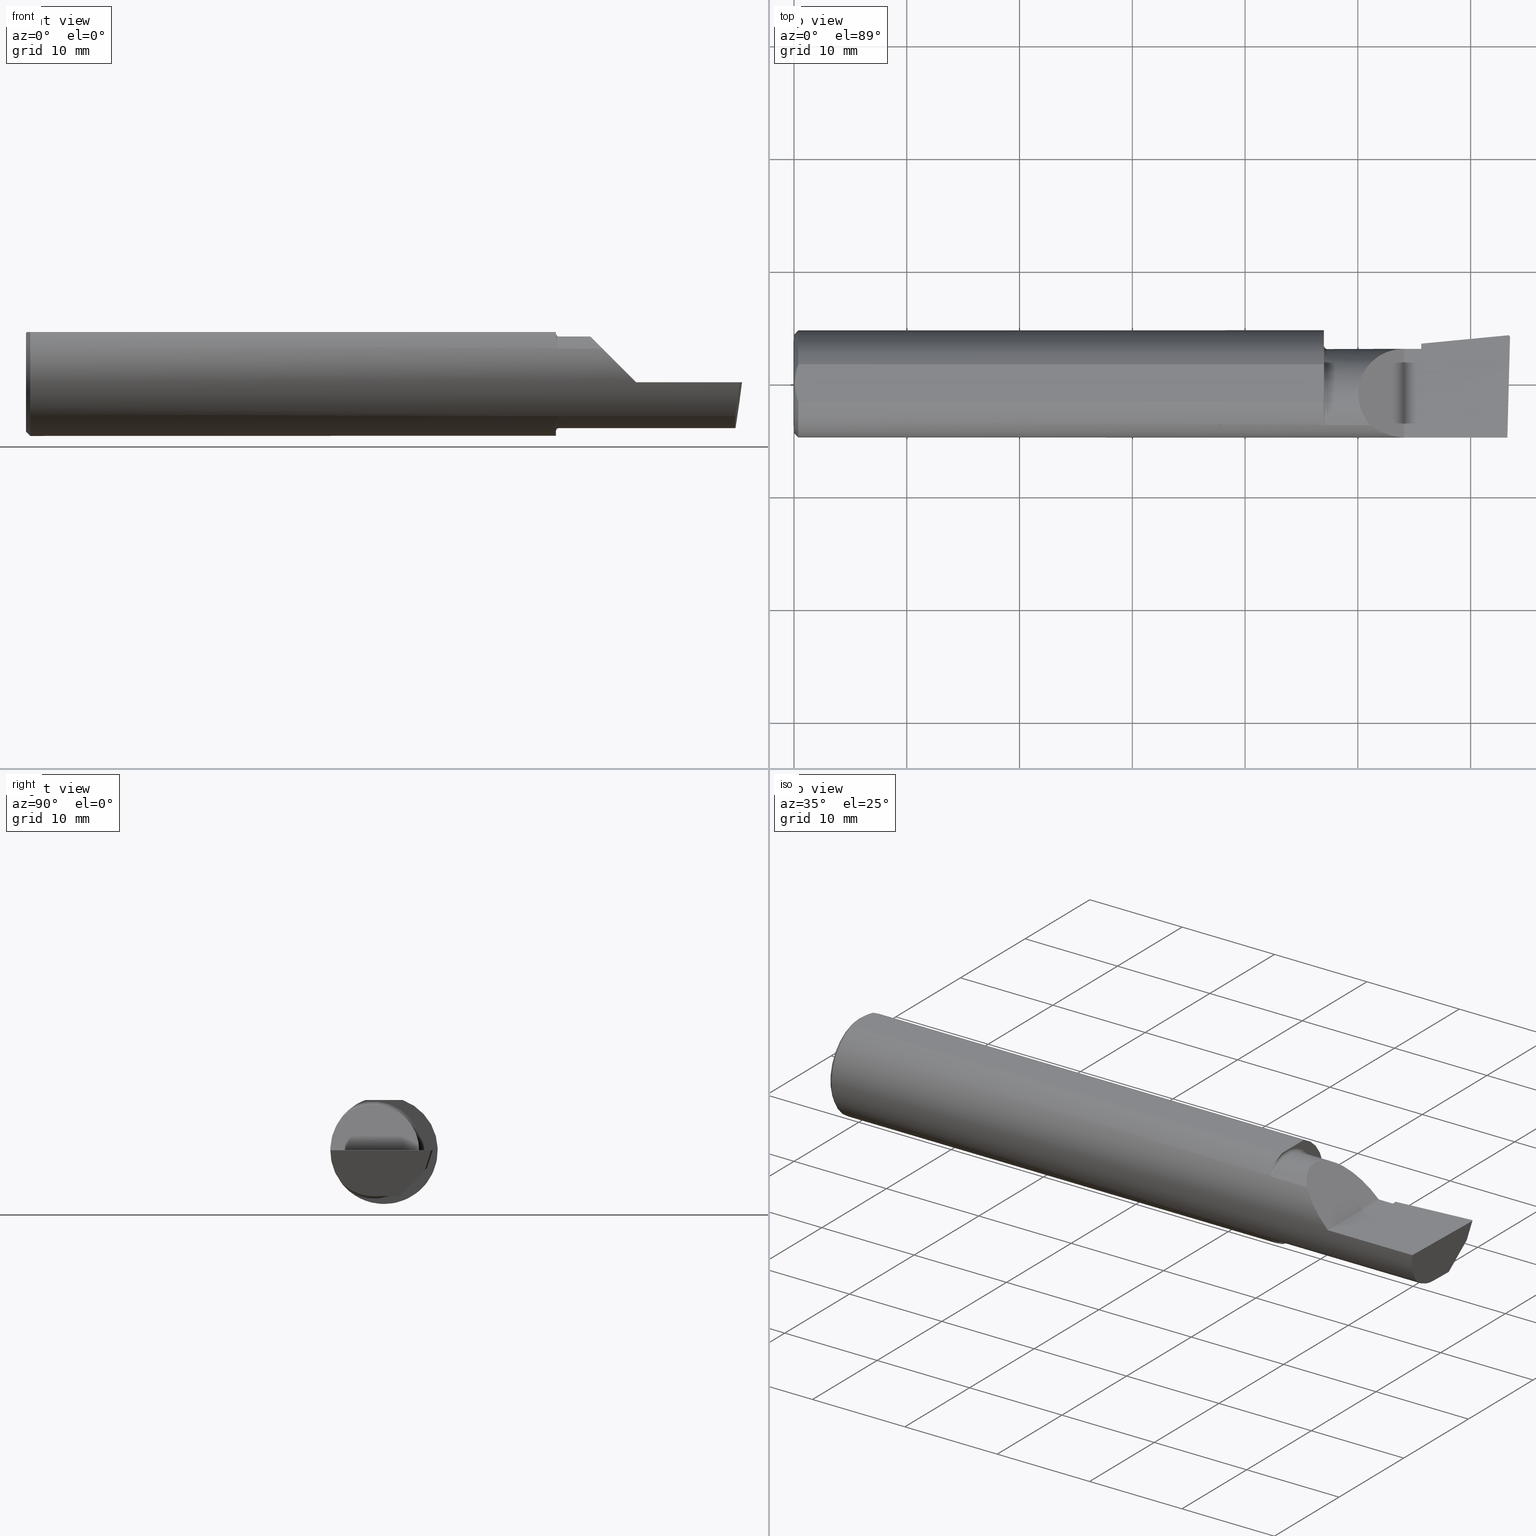
[diagram: canonical four-view strip — front | top / right | iso, engineering-drawing reading convention]
A machine part, canonical four-view strip (front | top / right | iso — engineering-drawing reading convention). The complete STEP part file that produces these views, byte-faithful:
ISO-10303-21;
HEADER;
FILE_DESCRIPTION (( 'STEP AP203' ),
    '1' );
FILE_NAME ('213696-B360600R.STEP',
    '2024-04-16T17:32:55',
    ( '' ),
    ( '' ),
    'SwSTEP 2.0',
    'SolidWorks 2022',
    '' );
FILE_SCHEMA (( 'CONFIG_CONTROL_DESIGN' ));
ENDSEC;

DATA;
#1 = PERSON_AND_ORGANIZATION_ROLE ( 'creator' ) ;
#2 = CARTESIAN_POINT ( 'NONE',  ( 1.859343186359710298, -0.1454917112302225868, 0.1180346748345670188 ) ) ;
#3 = PRODUCT_RELATED_PRODUCT_CATEGORY ( 'detail', '', ( #646 ) ) ;
#4 = LINE ( 'NONE', #493, #21 ) ;
#5 = LINE ( 'NONE', #165, #162 ) ;
#6 = AXIS2_PLACEMENT_3D ( 'NONE', #647, #644, #267 ) ;
#7 = ORIENTED_EDGE ( 'NONE', *, *, #656, .T. ) ;
#8 = CARTESIAN_POINT ( 'NONE',  ( 2.499910038027526316, 0.1672144908750999859, 6.760805322059816658E-17 ) ) ;
#9 = ORIENTED_EDGE ( 'NONE', *, *, #398, .F. ) ;
#10 = FACE_OUTER_BOUND ( 'NONE', #112, .T. ) ;
#11 = AXIS2_PLACEMENT_3D ( 'NONE', #328, #58, #483 ) ;
#12 = ORIENTED_EDGE ( 'NONE', *, *, #650, .T. ) ;
#13 = DIMENSIONAL_EXPONENTS ( 1.000000000000000000, 0.000000000000000000, 0.000000000000000000, 0.000000000000000000, 0.000000000000000000, 0.000000000000000000, 0.000000000000000000 ) ;
#14 = DIRECTION ( 'NONE',  ( -0.02617694830791348487, -0.9996573249755561497, 0.000000000000000000 ) ) ;
#15 = AXIS2_PLACEMENT_3D ( 'NONE', #660, #507, #237 ) ;
#16 = EDGE_CURVE ( 'NONE', #278, #466, #179, .T. ) ;
#17 = DIRECTION ( 'NONE',  ( 1.000000000000000000, 0.000000000000000000, 0.000000000000000000 ) ) ;
#18 = CARTESIAN_POINT ( 'NONE',  ( 0.003000000000000218638, 2.334609556160449697E-17, 0.1753499999999999781 ) ) ;
#19 = CARTESIAN_POINT ( 'NONE',  ( 2.190000000000000391, 0.1408003950587674580, 3.286754617377316716E-16 ) ) ;
#20 = LINE ( 'NONE', #80, #391 ) ;
#21 = VECTOR ( 'NONE', #445, 39.37007874015748143 ) ;
#22 = EDGE_CURVE ( 'NONE', #652, #689, #384, .T. ) ;
#23 = DIRECTION ( 'NONE',  ( -0.1240019227989955369, -0.3022330132596681707, -0.9451342385281221725 ) ) ;
#24 = VERTEX_POINT ( 'NONE', #597 ) ;
#25 = AXIS2_PLACEMENT_3D ( 'NONE', #524, #418, #141 ) ;
#26 = CARTESIAN_POINT ( 'NONE',  ( 2.189999999999999947, 0.1226499999999998980, 3.267291166268304703E-16 ) ) ;
#27 = DIRECTION ( 'NONE',  ( 0.1053106618242457548, 0.6976485211320155866, 0.7086580314005133108 ) ) ;
#28 = EDGE_CURVE ( 'NONE', #554, #584, #606, .T. ) ;
#29 = CC_DESIGN_PERSON_AND_ORGANIZATION_ASSIGNMENT ( #257, #580, ( #646 ) ) ;
#30 = ORIENTED_EDGE ( 'NONE', *, *, #536, .F. ) ;
#31 = ADVANCED_FACE ( 'NONE', ( #116 ), #334, .T. ) ;
#32 = DIRECTION ( 'NONE',  ( 0.000000000000000000, -1.000000000000000000, 0.000000000000000000 ) ) ;
#33 = CARTESIAN_POINT ( 'NONE',  ( 2.485436870590302050, 0.1508047977990067678, -0.06001468779820764987 ) ) ;
#34 = APPROVAL_PERSON_ORGANIZATION ( #379, #126, #143 ) ;
#35 = ORIENTED_EDGE ( 'NONE', *, *, #663, .F. ) ;
#36 = APPROVAL_STATUS ( 'not_yet_approved' ) ;
#37 = DIRECTION ( 'NONE',  ( 0.000000000000000000, 1.000000000000000000, 0.000000000000000000 ) ) ;
#38 = ORIENTED_EDGE ( 'NONE', *, *, #113, .T. ) ;
#39 = CALENDAR_DATE ( 2024, 16, 4 ) ;
#40 = EDGE_CURVE ( 'NONE', #307, #637, #175, .T. ) ;
#41 = PLANE ( 'NONE',  #280 ) ;
#42 = PLANE ( 'NONE',  #210 ) ;
#43 = ORIENTED_EDGE ( 'NONE', *, *, #167, .F. ) ;
#44 = ORIENTED_EDGE ( 'NONE', *, *, #331, .F. ) ;
#45 = PERSON_AND_ORGANIZATION_ROLE ( 'design_supplier' ) ;
#46 = DIRECTION ( 'NONE',  ( -1.033731667140896077E-16, 0.000000000000000000, -1.000000000000000000 ) ) ;
#47 = CYLINDRICAL_SURFACE ( 'NONE', #6, 0.006500000000000003171 ) ;
#48 = APPLICATION_CONTEXT ( 'configuration controlled 3d designs of mechanical parts and assemblies' ) ;
#49 = ORIENTED_EDGE ( 'NONE', *, *, #600, .T. ) ;
#50 = EDGE_CURVE ( 'NONE', #470, #24, #655, .T. ) ;
#51 = CC_DESIGN_APPROVAL ( #425, ( #239 ) ) ;
#52 = EDGE_CURVE ( 'NONE', #470, #637, #666, .T. ) ;
#53 = ORIENTED_EDGE ( 'NONE', *, *, #650, .F. ) ;
#54 = PERSON_AND_ORGANIZATION ( #312, #268 ) ;
#55 = FACE_OUTER_BOUND ( 'NONE', #91, .T. ) ;
#56 = CALENDAR_DATE ( 2024, 16, 4 ) ;
#57 = CARTESIAN_POINT ( 'NONE',  ( 1.854402240695038451, -0.1382337250035444720, 0.1264828452200235376 ) ) ;
#58 = DIRECTION ( 'NONE',  ( -1.000000000000000000, 6.829619984160658046E-18, -0.000000000000000000 ) ) ;
#59 = ADVANCED_BREP_SHAPE_REPRESENTATION ( '213696-B360600R', ( #355, #146 ), #171 ) ;
#60 = DIRECTION ( 'NONE',  ( 0.000000000000000000, 0.000000000000000000, -1.000000000000000000 ) ) ;
#61 = ORIENTED_EDGE ( 'NONE', *, *, #254, .F. ) ;
#62 = LINE ( 'NONE', #282, #134 ) ;
#63 = AXIS2_PLACEMENT_3D ( 'NONE', #206, #199, #519 ) ;
#64 = ORIENTED_EDGE ( 'NONE', *, *, #495, .F. ) ;
#65 = CARTESIAN_POINT ( 'NONE',  ( 2.190000000000000391, 0.1039332780936033929, -0.07900565447499378890 ) ) ;
#66 = VERTEX_POINT ( 'NONE', #133 ) ;
#67 = DIRECTION ( 'NONE',  ( -6.829619984160658046E-18, -1.000000000000000000, 0.000000000000000000 ) ) ;
#68 = AXIS2_PLACEMENT_3D ( 'NONE', #161, #431, #640 ) ;
#69 = CARTESIAN_POINT ( 'NONE',  ( 1.850483388365424364, -0.1180160148311104190, -0.1458664675357415619 ) ) ;
#70 = CARTESIAN_POINT ( 'NONE',  ( 2.493512870449336116, 0.1699961668063743603, 6.829619984160658046E-17 ) ) ;
#71 = CARTESIAN_POINT ( 'NONE',  ( 1.856664569472227688, -0.1431262185210685489, -0.1208975608635237120 ) ) ;
#72 =( BOUNDED_CURVE ( )  B_SPLINE_CURVE ( 3, ( #86, #310, #422, #83 ),
 .UNSPECIFIED., .F., .F. ) 
 B_SPLINE_CURVE_WITH_KNOTS ( ( 4, 4 ),
 ( 3.511516179717891095, 3.604018710826489169 ),
 .UNSPECIFIED. ) 
 CURVE ( )  GEOMETRIC_REPRESENTATION_ITEM ( )  RATIONAL_B_SPLINE_CURVE ( ( 1.000000000000000000, 0.9992870672494007511, 0.9992870672494007511, 1.000000000000000000 ) ) 
 REPRESENTATION_ITEM ( '' )  );
#73 = CARTESIAN_POINT ( 'NONE',  ( 0.01125230581755086272, 0.05532998191409922023, 0.1753500000000000059 ) ) ;
#74 = FACE_OUTER_BOUND ( 'NONE', #413, .T. ) ;
#75 = LINE ( 'NONE', #468, #183 ) ;
#76 = CARTESIAN_POINT ( 'NONE',  ( 2.477223734188808368, -0.1454917112299465021, -0.1180346748349054287 ) ) ;
#77 = AXIS2_PLACEMENT_3D ( 'NONE', #411, #300, #399 ) ;
#78 = ORIENTED_EDGE ( 'NONE', *, *, #149, .T. ) ;
#79 = DIRECTION ( 'NONE',  ( 1.000000000000000000, 0.000000000000000000, 0.000000000000000000 ) ) ;
#80 = CARTESIAN_POINT ( 'NONE',  ( 2.024999999999999911, -0.1454917112299465021, -0.1180346748349054287 ) ) ;
#81 = ORIENTED_EDGE ( 'NONE', *, *, #286, .F. ) ;
#82 = CARTESIAN_POINT ( 'NONE',  ( 2.490625440078237940, -0.1873499999999999888, 6.926778495256704501E-17 ) ) ;
#83 = CARTESIAN_POINT ( 'NONE',  ( 2.492906680581914447, 0.1699669910246714710, 6.902945873236853560E-17 ) ) ;
#84 = VERTEX_POINT ( 'NONE', #342 ) ;
#85 = ORIENTED_EDGE ( 'NONE', *, *, #656, .F. ) ;
#86 = CARTESIAN_POINT ( 'NONE',  ( 2.493512870449336116, 0.1699961668063743603, 6.829619984160658046E-17 ) ) ;
#87 = ORIENTED_EDGE ( 'NONE', *, *, #696, .T. ) ;
#88 = EDGE_CURVE ( 'NONE', #638, #131, #515, .T. ) ;
#89 = DIRECTION ( 'NONE',  ( 1.000000000000000000, 0.000000000000000000, 0.000000000000000000 ) ) ;
#90 = CARTESIAN_POINT ( 'NONE',  ( 1.856216587669450524, -0.1423502170013167256, 0.1218111458006547326 ) ) ;
#91 = EDGE_LOOP ( 'NONE', ( #616, #251, #44 ) ) ;
#92 = VECTOR ( 'NONE', #634, 39.37007874015748854 ) ;
#93 = VERTEX_POINT ( 'NONE', #291 ) ;
#94 = DIRECTION ( 'NONE',  ( 1.000000000000000000, 0.000000000000000000, 0.000000000000000000 ) ) ;
#95 = CARTESIAN_POINT ( 'NONE',  ( 2.473833329693935212, -0.07789060880782647245, -0.1600499999999999978 ) ) ;
#96 = CARTESIAN_POINT ( 'NONE',  ( 2.129999999999999893, -0.2500000000000000555, 1.065442715258197396E-16 ) ) ;
#97 = EDGE_CURVE ( 'NONE', #584, #298, #615, .T. ) ;
#98 = EDGE_CURVE ( 'NONE', #174, #159, #20, .T. ) ;
#99 = ORIENTED_EDGE ( 'NONE', *, *, #297, .T. ) ;
#100 = ORIENTED_EDGE ( 'NONE', *, *, #224, .T. ) ;
#101 = DATE_AND_TIME ( #475, #340 ) ;
#102 = CARTESIAN_POINT ( 'NONE',  ( 0.000000000000000000, 0.000000000000000000, -0.1723499999999996424 ) ) ;
#103 = DIRECTION ( 'NONE',  ( -0.09165774897393336174, 0.9519021185660612172, -0.2923717047227308297 ) ) ;
#104 = VECTOR ( 'NONE', #114, 39.37007874015748854 ) ;
#105 = ORIENTED_EDGE ( 'NONE', *, *, #16, .T. ) ;
#106 = PERSON_AND_ORGANIZATION ( #312, #268 ) ;
#107 = APPROVAL ( #428, 'UNSPECIFIED' ) ;
#108 = DIRECTION ( 'NONE',  ( -0.7071067811865439090, 0.000000000000000000, -0.7071067811865512365 ) ) ;
#109 = VECTOR ( 'NONE', #687, 39.37007874015748143 ) ;
#110 = CARTESIAN_POINT ( 'NONE',  ( 1.857580800664965892, -0.1442412736056268574, 0.1195608849622524089 ) ) ;
#111 = DIRECTION ( 'NONE',  ( -0.1240019227989955508, -0.3022330132596681707, -0.9451342385281221725 ) ) ;
#112 = EDGE_LOOP ( 'NONE', ( #228, #49, #211, #53 ) ) ;
#113 = EDGE_CURVE ( 'NONE', #676, #159, #358, .T. ) ;
#114 = DIRECTION ( 'NONE',  ( 0.1240019227989955231, 0.3022330132596681707, 0.9451342385281221725 ) ) ;
#115 = VECTOR ( 'NONE', #383, 39.37007874015748143 ) ;
#116 = FACE_OUTER_BOUND ( 'NONE', #316, .T. ) ;
#117 = CARTESIAN_POINT ( 'NONE',  ( 2.485034660857471600, 0.1507803188501235514, -0.05999999999999999084 ) ) ;
#118 = VECTOR ( 'NONE', #576, 39.37007874015748143 ) ;
#119 = ORIENTED_EDGE ( 'NONE', *, *, #88, .T. ) ;
#120 = ADVANCED_FACE ( 'NONE', ( #248 ), #353, .T. ) ;
#121 = DIRECTION ( 'NONE',  ( -1.000000000000000000, 6.829619984160658046E-18, 0.000000000000000000 ) ) ;
#122 = DIRECTION ( 'NONE',  ( -1.000000000000000000, -0.000000000000000000, -0.000000000000000000 ) ) ;
#123 = CARTESIAN_POINT ( 'NONE',  ( 2.129999999999999893, -0.2500000000000000555, 1.065442715258197396E-16 ) ) ;
#124 = CIRCLE ( 'NONE', #77, 0.1600499999999999146 ) ;
#125 = LINE ( 'NONE', #453, #667 ) ;
#126 = APPROVAL ( #270, 'UNSPECIFIED' ) ;
#127 =( BOUNDED_CURVE ( )  B_SPLINE_CURVE ( 3, ( #430, #266, #95, #271 ),
 .UNSPECIFIED., .F., .F. ) 
 B_SPLINE_CURVE_WITH_KNOTS ( ( 4, 4 ),
 ( 5.751779107031779859, 6.493234751459979748 ),
 .UNSPECIFIED. ) 
 CURVE ( )  GEOMETRIC_REPRESENTATION_ITEM ( )  RATIONAL_B_SPLINE_CURVE ( ( 1.000000000000000000, 0.9547092712975354667, 0.9547092712975354667, 1.000000000000000000 ) ) 
 REPRESENTATION_ITEM ( '' )  );
#128 = CARTESIAN_POINT ( 'NONE',  ( 1.856208682939483046, -0.1423361566194921712, -0.1218275716760985061 ) ) ;
#129 = DIRECTION ( 'NONE',  ( 0.02617694830791347793, 0.9996573249755561497, -2.665804247647892138E-18 ) ) ;
#130 = LINE ( 'NONE', #346, #473 ) ;
#131 = VERTEX_POINT ( 'NONE', #400 ) ;
#132 = CARTESIAN_POINT ( 'NONE',  ( 0.3393181374772709646, -0.03739999999999999575, 2.916527262322781592E-16 ) ) ;
#133 = CARTESIAN_POINT ( 'NONE',  ( 2.190000000000000391, -0.03740000000000000269, -0.1600499999999999701 ) ) ;
#134 = VECTOR ( 'NONE', #571, 39.37007874015748143 ) ;
#135 = ORIENTED_EDGE ( 'NONE', *, *, #539, .F. ) ;
#136 = LINE ( 'NONE', #236, #365 ) ;
#137 = CARTESIAN_POINT ( 'NONE',  ( 2.490474961019658817, 0.1405126185684996143, -0.07112352112763128953 ) ) ;
#138 = VERTEX_POINT ( 'NONE', #18 ) ;
#139 = EDGE_LOOP ( 'NONE', ( #395, #78, #7, #105, #426 ) ) ;
#140 = LENGTH_MEASURE_WITH_UNIT ( LENGTH_MEASURE( 0.02539999999999999897 ), #401 );
#141 = DIRECTION ( 'NONE',  ( 0.000000000000000000, -1.000000000000000000, 0.000000000000000000 ) ) ;
#142 = VERTEX_POINT ( 'NONE', #301 ) ;
#143 = APPROVAL_ROLE ( '' ) ;
#144 = CARTESIAN_POINT ( 'NONE',  ( 1.850000000000000311, -0.1013606951871659639, 0.1575627873933893863 ) ) ;
#145 = DIRECTION ( 'NONE',  ( -1.000000000000000000, 6.829619984160658046E-18, 0.000000000000000000 ) ) ;
#146 = AXIS2_PLACEMENT_3D ( 'NONE', #198, #439, #94 ) ;
#147 = ORIENTED_EDGE ( 'NONE', *, *, #52, .T. ) ;
#148 = ORIENTED_EDGE ( 'NONE', *, *, #545, .F. ) ;
#149 = EDGE_CURVE ( 'NONE', #255, #138, #125, .T. ) ;
#150 = DIRECTION ( 'NONE',  ( 1.000000000000000000, -6.829619984160658046E-18, 0.000000000000000000 ) ) ;
#151 = LINE ( 'NONE', #380, #583 ) ;
#152 =( BOUNDED_CURVE ( )  B_SPLINE_CURVE ( 3, ( #504, #288, #393, #389 ),
 .UNSPECIFIED., .F., .T. ) 
 B_SPLINE_CURVE_WITH_KNOTS ( ( 4, 4 ),
 ( 0.6791649766273047950, 1.360746882514503930 ),
 .UNSPECIFIED. ) 
 CURVE ( )  GEOMETRIC_REPRESENTATION_ITEM ( )  RATIONAL_B_SPLINE_CURVE ( ( 1.000000000000000000, 0.9616603987079548332, 0.9616603987079548332, 1.000000000000000000 ) ) 
 REPRESENTATION_ITEM ( '' )  );
#153 = VERTEX_POINT ( 'NONE', #461 ) ;
#154 = VECTOR ( 'NONE', #14, 39.37007874015748854 ) ;
#155 = VECTOR ( 'NONE', #423, 39.37007874015748143 ) ;
#156 = APPROVAL_ROLE ( '' ) ;
#157 = FACE_OUTER_BOUND ( 'NONE', #250, .T. ) ;
#158 = CARTESIAN_POINT ( 'NONE',  ( 1.850000000000000311, -0.1013606951871659639, 0.1575627873933893863 ) ) ;
#159 = VERTEX_POINT ( 'NONE', #289 ) ;
#160 = FACE_OUTER_BOUND ( 'NONE', #139, .T. ) ;
#161 = CARTESIAN_POINT ( 'NONE',  ( 2.511712141217647964, 0.1533490680423131025, -0.05999999999999999084 ) ) ;
#162 = VECTOR ( 'NONE', #555, 39.37007874015748143 ) ;
#163 = DATE_AND_TIME ( #39, #592 ) ;
#164 = FACE_OUTER_BOUND ( 'NONE', #169, .T. ) ;
#165 = CARTESIAN_POINT ( 'NONE',  ( 0.000000000000000000, -0.06597272163553657975, 0.1753499999999999781 ) ) ;
#166 = DIRECTION ( 'NONE',  ( 0.000000000000000000, 0.000000000000000000, 1.000000000000000000 ) ) ;
#167 = EDGE_CURVE ( 'NONE', #264, #255, #215, .T. ) ;
#168 = CARTESIAN_POINT ( 'NONE',  ( 2.463713815698263421, 0.09736617925121826556, -0.2271263726020291418 ) ) ;
#169 = EDGE_LOOP ( 'NONE', ( #553, #38, #194, #623 ) ) ;
#170 = CC_DESIGN_PERSON_AND_ORGANIZATION_ASSIGNMENT ( #323, #421, ( #239 ) ) ;
#171 =( GEOMETRIC_REPRESENTATION_CONTEXT ( 3 ) GLOBAL_UNCERTAINTY_ASSIGNED_CONTEXT ( ( #438 ) ) GLOBAL_UNIT_ASSIGNED_CONTEXT ( ( #187, #510, #309 ) ) REPRESENTATION_CONTEXT ( 'NONE', 'WORKASPACE' ) );
#172 = PLANE ( 'NONE',  #456 ) ;
#173 = EDGE_CURVE ( 'NONE', #322, #683, #604, .T. ) ;
#174 = VERTEX_POINT ( 'NONE', #76 ) ;
#175 =( BOUNDED_CURVE ( )  B_SPLINE_CURVE ( 3, ( #263, #339, #184, #137 ),
 .UNSPECIFIED., .F., .F. ) 
 B_SPLINE_CURVE_WITH_KNOTS ( ( 4, 4 ),
 ( 3.156599629463081591, 4.715023529952355297 ),
 .UNSPECIFIED. ) 
 CURVE ( )  GEOMETRIC_REPRESENTATION_ITEM ( )  RATIONAL_B_SPLINE_CURVE ( ( 1.000000000000000000, 0.8076450242550372582, 0.8076450242550372582, 1.000000000000000000 ) ) 
 REPRESENTATION_ITEM ( '' )  );
#176 = CARTESIAN_POINT ( 'NONE',  ( 0.01499999999999999424, 0.000000000000000000, -0.1873499999999999888 ) ) ;
#177 = AXIS2_PLACEMENT_3D ( 'NONE', #203, #122, #499 ) ;
#178 = EDGE_LOOP ( 'NONE', ( #560, #627, #578, #668 ) ) ;
#179 = CIRCLE ( 'NONE', #302, 0.1873499999999999888 ) ;
#180 = CC_DESIGN_PERSON_AND_ORGANIZATION_ASSIGNMENT ( #106, #1, ( #233 ) ) ;
#181 = CARTESIAN_POINT ( 'NONE',  ( 2.011965325165096630, -0.1454917112299495829, 0.1180346748349020841 ) ) ;
#182 = DIRECTION ( 'NONE',  ( 0.000000000000000000, -1.000000000000000000, 0.000000000000000000 ) ) ;
#183 = VECTOR ( 'NONE', #677, 39.37007874015748143 ) ;
#184 = CARTESIAN_POINT ( 'NONE',  ( 2.491359894127330943, 0.1463750095474703194, -0.06516861643763574574 ) ) ;
#185 = CARTESIAN_POINT ( 'NONE',  ( 1.850000000000000311, -0.1013606951871659639, -0.1575627873933893863 ) ) ;
#186 = ORIENTED_EDGE ( 'NONE', *, *, #500, .F. ) ;
#187 =( CONVERSION_BASED_UNIT ( 'INCH', #140 ) LENGTH_UNIT ( ) NAMED_UNIT ( #13 ) );
#188 = CARTESIAN_POINT ( 'NONE',  ( 1.854404192622242098, -0.1382376748423446433, -0.1264781021717285292 ) ) ;
#189 = ORIENTED_EDGE ( 'NONE', *, *, #350, .F. ) ;
#190 = CARTESIAN_POINT ( 'NONE',  ( 1.850000000000000311, -0.1013606951871659639, -0.1575627873933893863 ) ) ;
#191 = CARTESIAN_POINT ( 'NONE',  ( 1.859335809113331628, -0.1454917112299465576, -0.1180346748349054564 ) ) ;
#192 = VECTOR ( 'NONE', #238, 39.37007874015748143 ) ;
#193 = ORIENTED_EDGE ( 'NONE', *, *, #563, .T. ) ;
#194 = ORIENTED_EDGE ( 'NONE', *, *, #220, .T. ) ;
#195 = PLANE ( 'NONE',  #63 ) ;
#196 = VERTEX_POINT ( 'NONE', #242 ) ;
#197 = ORIENTED_EDGE ( 'NONE', *, *, #113, .F. ) ;
#198 = CARTESIAN_POINT ( 'NONE',  ( 0.000000000000000000, 0.000000000000000000, 0.000000000000000000 ) ) ;
#199 = DIRECTION ( 'NONE',  ( 0.000000000000000000, -1.438723400918613551E-16, -1.000000000000000000 ) ) ;
#200 = ORIENTED_EDGE ( 'NONE', *, *, #536, .T. ) ;
#201 = DIRECTION ( 'NONE',  ( -6.829619984160658046E-18, -1.000000000000000000, 1.438723400918613551E-16 ) ) ;
#202 = FACE_OUTER_BOUND ( 'NONE', #534, .T. ) ;
#203 = CARTESIAN_POINT ( 'NONE',  ( 0.000000000000000000, 0.000000000000000000, 0.000000000000000000 ) ) ;
#204 = ORIENTED_EDGE ( 'NONE', *, *, #40, .F. ) ;
#205 = PERSON_AND_ORGANIZATION ( #312, #268 ) ;
#206 = CARTESIAN_POINT ( 'NONE',  ( 2.500000000000000000, 0.2373500000000000332, 0.1753499999999999504 ) ) ;
#207 = PLANE ( 'NONE',  #68 ) ;
#208 = ORIENTED_EDGE ( 'NONE', *, *, #636, .F. ) ;
#209 = CLOSED_SHELL ( 'NONE', ( #120, #335, #479, #349, #613, #31, #279, #246, #387, #596, #241, #432, #247, #226, #377, #457, #419, #367, #429 ) ) ;
#210 = AXIS2_PLACEMENT_3D ( 'NONE', #594, #488, #364 ) ;
#211 = ORIENTED_EDGE ( 'NONE', *, *, #545, .T. ) ;
#212 = DATE_AND_TIME ( #486, #287 ) ;
#213 = CARTESIAN_POINT ( 'NONE',  ( 2.190000000000000391, 0.1223717121708781524, -0.05999999999999999084 ) ) ;
#214 = CARTESIAN_POINT ( 'NONE',  ( 1.852845212421890375, -0.1330145888620360706, 0.1320338710448778208 ) ) ;
#215 = CIRCLE ( 'NONE', #382, 0.1723499999999996424 ) ;
#216 = COORDINATED_UNIVERSAL_TIME_OFFSET ( 8, 0, .BEHIND. ) ;
#217 = FACE_OUTER_BOUND ( 'NONE', #361, .T. ) ;
#218 = AXIS2_PLACEMENT_3D ( 'NONE', #598, #333, #550 ) ;
#219 = DIRECTION ( 'NONE',  ( -1.000000000000000000, 5.691349986800549142E-18, -0.000000000000000000 ) ) ;
#220 = EDGE_CURVE ( 'NONE', #159, #683, #610, .T. ) ;
#221 = LINE ( 'NONE', #168, #494 ) ;
#222 = CC_DESIGN_PERSON_AND_ORGANIZATION_ASSIGNMENT ( #535, #45, ( #239 ) ) ;
#223 = ORIENTED_EDGE ( 'NONE', *, *, #489, .T. ) ;
#224 = EDGE_CURVE ( 'NONE', #351, #652, #130, .T. ) ;
#225 =( BOUNDED_CURVE ( )  B_SPLINE_CURVE ( 3, ( #442, #396, #602, #336 ),
 .UNSPECIFIED., .F., .F. ) 
 B_SPLINE_CURVE_WITH_KNOTS ( ( 4, 4 ),
 ( 5.541729662751357921, 7.853981633974482790 ),
 .UNSPECIFIED. ) 
 CURVE ( )  GEOMETRIC_REPRESENTATION_ITEM ( )  RATIONAL_B_SPLINE_CURVE ( ( 1.000000000000000000, 0.6019254882129634332, 0.6019254882129634332, 1.000000000000000000 ) ) 
 REPRESENTATION_ITEM ( '' )  );
#226 = ADVANCED_FACE ( 'NONE', ( #74 ), #294, .T. ) ;
#227 = CARTESIAN_POINT ( 'NONE',  ( 0.01499999999999999424, 0.000000000000000000, 0.000000000000000000 ) ) ;
#228 = ORIENTED_EDGE ( 'NONE', *, *, #22, .T. ) ;
#229 = CC_DESIGN_APPROVAL ( #107, ( #233 ) ) ;
#230 = CARTESIAN_POINT ( 'NONE',  ( 2.493512870449336116, 0.1699961668063743603, 6.829619984160658046E-17 ) ) ;
#231 = ORIENTED_EDGE ( 'NONE', *, *, #275, .T. ) ;
#232 = EDGE_CURVE ( 'NONE', #584, #307, #296, .T. ) ;
#233 = PRODUCT_DEFINITION ( 'UNKNOWN', '', #239, #544 ) ;
#234 = LINE ( 'NONE', #123, #688 ) ;
#235 = CARTESIAN_POINT ( 'NONE',  ( 3.377502344341257155E-32, -0.1873499999999999610, 3.267291166268304703E-16 ) ) ;
#236 = CARTESIAN_POINT ( 'NONE',  ( 2.024999999999999911, -0.1454917112299465021, 0.1180346748349054287 ) ) ;
#237 = DIRECTION ( 'NONE',  ( 0.000000000000000000, -1.000000000000000000, 0.000000000000000000 ) ) ;
#238 = DIRECTION ( 'NONE',  ( 0.9953961983671787417, 0.09584575252022464742, -1.028972571603813720E-16 ) ) ;
#239 = PRODUCT_DEFINITION_FORMATION_WITH_SPECIFIED_SOURCE ( 'ANY', '', #646, .NOT_KNOWN. ) ;
#240 = DIRECTION ( 'NONE',  ( -1.000000000000000000, 6.829619984160658046E-18, -0.000000000000000000 ) ) ;
#241 = ADVANCED_FACE ( 'NONE', ( #157 ), #490, .T. ) ;
#242 = CARTESIAN_POINT ( 'NONE',  ( 2.190000000000000391, 0.09838681685089201157, -0.08472274115904360192 ) ) ;
#243 = CIRCLE ( 'NONE', #25, 0.1600499999999999701 ) ;
#244 = ORIENTED_EDGE ( 'NONE', *, *, #402, .F. ) ;
#245 = CARTESIAN_POINT ( 'NONE',  ( 2.189999999999999947, -0.03740000000000000269, 0.000000000000000000 ) ) ;
#246 = ADVANCED_FACE ( 'NONE', ( #572 ), #487, .F. ) ;
#247 = ADVANCED_FACE ( 'NONE', ( #253 ), #41, .T. ) ;
#248 = FACE_OUTER_BOUND ( 'NONE', #178, .T. ) ;
#249 =( BOUNDED_CURVE ( )  B_SPLINE_CURVE ( 3, ( #447, #452, #659, #181 ),
 .UNSPECIFIED., .F., .F. ) 
 B_SPLINE_CURVE_WITH_KNOTS ( ( 4, 4 ),
 ( 4.712388980384689674, 5.393970886271864273 ),
 .UNSPECIFIED. ) 
 CURVE ( )  GEOMETRIC_REPRESENTATION_ITEM ( )  RATIONAL_B_SPLINE_CURVE ( ( 1.000000000000000000, 0.9616603987079574978, 0.9616603987079574978, 1.000000000000000000 ) ) 
 REPRESENTATION_ITEM ( '' )  );
#250 = EDGE_LOOP ( 'NONE', ( #523, #43, #359, #528, #321 ) ) ;
#251 = ORIENTED_EDGE ( 'NONE', *, *, #402, .T. ) ;
#252 = CARTESIAN_POINT ( 'NONE',  ( 0.01499999999999999424, 0.06597272163553663527, 0.1753499999999999781 ) ) ;
#253 = FACE_OUTER_BOUND ( 'NONE', #478, .T. ) ;
#254 = EDGE_CURVE ( 'NONE', #470, #462, #537, .T. ) ;
#255 = VERTEX_POINT ( 'NONE', #691 ) ;
#256 = CC_DESIGN_DATE_AND_TIME_ASSIGNMENT ( #491, #628, ( #325 ) ) ;
#257 = PERSON_AND_ORGANIZATION ( #312, #268 ) ;
#258 = CARTESIAN_POINT ( 'NONE',  ( 2.485034660857471600, 0.1507803188501235514, -0.05999999999999999084 ) ) ;
#259 = ORIENTED_EDGE ( 'NONE', *, *, #220, .F. ) ;
#260 = CALENDAR_DATE ( 2024, 16, 4 ) ;
#261 = CARTESIAN_POINT ( 'NONE',  ( 0.01499999999999999424, 0.000000000000000000, 0.000000000000000000 ) ) ;
#262 = CARTESIAN_POINT ( 'NONE',  ( 2.190000000000000391, 0.1039332780936033929, -0.07900565447499378890 ) ) ;
#263 = CARTESIAN_POINT ( 'NONE',  ( 2.485635073714591581, 0.1507954141789453750, -0.06004403198038586742 ) ) ;
#264 = VERTEX_POINT ( 'NONE', #102 ) ;
#265 = SHAPE_DEFINITION_REPRESENTATION ( #444, #59 ) ;
#266 = CARTESIAN_POINT ( 'NONE',  ( 2.474646882977779239, -0.1156304438478836655, -0.1453804992321582057 ) ) ;
#267 = DIRECTION ( 'NONE',  ( 0.000000000000000000, 0.9524855432518755105, -0.3045837978228315701 ) ) ;
#268 = ORGANIZATION ( 'UNSPECIFIED', 'UNSPECIFIED', '' ) ;
#269 = ORIENTED_EDGE ( 'NONE', *, *, #52, .F. ) ;
#270 = APPROVAL_STATUS ( 'not_yet_approved' ) ;
#271 = CARTESIAN_POINT ( 'NONE',  ( 2.474893613600468001, -0.03740000000000000269, -0.1600499999999999701 ) ) ;
#272 = PLANE ( 'NONE',  #281 ) ;
#273 = VECTOR ( 'NONE', #201, 39.37007874015748143 ) ;
#274 = CARTESIAN_POINT ( 'NONE',  ( 1.850493306168248031, -0.1180879943980262942, 0.1458023451353283872 ) ) ;
#275 = EDGE_CURVE ( 'NONE', #174, #24, #127, .T. ) ;
#276 = CARTESIAN_POINT ( 'NONE',  ( 2.190000000000000391, 0.02530768673263078875, -0.1600499999999999701 ) ) ;
#277 = DIRECTION ( 'NONE',  ( -1.000000000000000000, -0.000000000000000000, -0.000000000000000000 ) ) ;
#278 = VERTEX_POINT ( 'NONE', #678 ) ;
#279 = ADVANCED_FACE ( 'NONE', ( #306 ), #195, .F. ) ;
#280 = AXIS2_PLACEMENT_3D ( 'NONE', #682, #697, #374 ) ;
#281 = AXIS2_PLACEMENT_3D ( 'NONE', #685, #582, #630 ) ;
#282 = CARTESIAN_POINT ( 'NONE',  ( 2.190000000000000391, 0.1375075152821363667, -0.01072093908174520487 ) ) ;
#283 = DIRECTION ( 'NONE',  ( -1.000000000000000000, -0.000000000000000000, -0.000000000000000000 ) ) ;
#284 = DIRECTION ( 'NONE',  ( -4.755568962650852797E-18, -0.6963153109074924352, -0.7177360153954949196 ) ) ;
#285 = ORIENTED_EDGE ( 'NONE', *, *, #173, .T. ) ;
#286 = EDGE_CURVE ( 'NONE', #153, #311, #684, .T. ) ;
#287 = LOCAL_TIME ( 10, 32, 55.00000000000000000, #593 ) ;
#288 = CARTESIAN_POINT ( 'NONE',  ( 2.480648201915109485, -0.1728409665178087251, -0.08432347972837195282 ) ) ;
#289 = CARTESIAN_POINT ( 'NONE',  ( 1.860000000000000098, -0.1454917112299463355, -0.1180346748349055813 ) ) ;
#290 = FACE_OUTER_BOUND ( 'NONE', #330, .T. ) ;
#291 = CARTESIAN_POINT ( 'NONE',  ( 2.011965325165096630, -0.1454917112299495829, 0.1180346748349020841 ) ) ;
#292 = EDGE_CURVE ( 'NONE', #84, #196, #243, .T. ) ;
#293 = LINE ( 'NONE', #672, #424 ) ;
#294 = CYLINDRICAL_SURFACE ( 'NONE', #526, 0.1600499999999999701 ) ;
#295 = CARTESIAN_POINT ( 'NONE',  ( 0.000000000000000000, -0.03739999999999998881, 0.000000000000000000 ) ) ;
#296 =( BOUNDED_CURVE ( )  B_SPLINE_CURVE ( 3, ( #258, #469, #33, #476 ),
 .UNSPECIFIED., .F., .F. ) 
 B_SPLINE_CURVE_WITH_KNOTS ( ( 4, 4 ),
 ( 3.064097098354474191, 3.156599629463081591 ),
 .UNSPECIFIED. ) 
 CURVE ( )  GEOMETRIC_REPRESENTATION_ITEM ( )  RATIONAL_B_SPLINE_CURVE ( ( 1.000000000000000000, 0.9992870672494007511, 0.9992870672494007511, 1.000000000000000000 ) ) 
 REPRESENTATION_ITEM ( '' )  );
#297 = EDGE_CURVE ( 'NONE', #590, #554, #72, .T. ) ;
#298 = VERTEX_POINT ( 'NONE', #213 ) ;
#299 = EDGE_CURVE ( 'NONE', #683, #153, #497, .T. ) ;
#300 = DIRECTION ( 'NONE',  ( -1.000000000000000000, 6.829619984160658046E-18, -0.000000000000000000 ) ) ;
#301 = CARTESIAN_POINT ( 'NONE',  ( 2.499806390372801612, 0.1632563466314230216, 6.833281667418704158E-17 ) ) ;
#302 = AXIS2_PLACEMENT_3D ( 'NONE', #641, #283, #166 ) ;
#303 = AXIS2_PLACEMENT_3D ( 'NONE', #261, #89, #368 ) ;
#304 = ORIENTED_EDGE ( 'NONE', *, *, #696, .F. ) ;
#305 = DIRECTION ( 'NONE',  ( -1.000000000000000000, 6.829619984160658046E-18, -0.000000000000000000 ) ) ;
#306 = FACE_OUTER_BOUND ( 'NONE', #512, .T. ) ;
#307 = VERTEX_POINT ( 'NONE', #472 ) ;
#308 = ORIENTED_EDGE ( 'NONE', *, *, #495, .T. ) ;
#309 =( NAMED_UNIT ( * ) SI_UNIT ( $, .STERADIAN. ) SOLID_ANGLE_UNIT ( ) );
#310 = CARTESIAN_POINT ( 'NONE',  ( 2.493310817358698195, 0.1699961668063743603, 6.829023555897993829E-17 ) ) ;
#311 = VERTEX_POINT ( 'NONE', #567 ) ;
#312 = PERSON ( 'UNSPECIFIED', 'UNSPECIFIED', 'UNSPECIFIED', ('UNSPECIFIED'), ('UNSPECIFIED'), ('UNSPECIFIED') ) ;
#313 = DIRECTION ( 'NONE',  ( -1.000000000000000000, 0.000000000000000000, 1.033731667140896077E-16 ) ) ;
#314 = LINE ( 'NONE', #262, #155 ) ;
#315 = TOROIDAL_SURFACE ( 'NONE', #11, 0.1700499999999999512, 0.009999999999999936023 ) ;
#316 = EDGE_LOOP ( 'NONE', ( #409, #410, #119, #621, #35, #9, #406, #193, #533, #679, #87, #481, #259 ) ) ;
#317 = ORIENTED_EDGE ( 'NONE', *, *, #331, .T. ) ;
#318 = DATE_TIME_ROLE ( 'creation_date' ) ;
#319 = DIRECTION ( 'NONE',  ( -1.000000000000000000, -0.000000000000000000, -0.000000000000000000 ) ) ;
#320 = CARTESIAN_POINT ( 'NONE',  ( 1.852149571221040736, -0.1293863363941682443, 0.1355911774285943894 ) ) ;
#321 = ORIENTED_EDGE ( 'NONE', *, *, #636, .T. ) ;
#322 = VERTEX_POINT ( 'NONE', #144 ) ;
#323 = PERSON_AND_ORGANIZATION ( #312, #268 ) ;
#324 = DIRECTION ( 'NONE',  ( 0.000000000000000000, 0.2936076258024065688, 0.9559260233253794592 ) ) ;
#325 = SECURITY_CLASSIFICATION ( '', '', #326 ) ;
#326 = SECURITY_CLASSIFICATION_LEVEL ( 'unclassified' ) ;
#327 = CARTESIAN_POINT ( 'NONE',  ( 1.850000000000000533, -0.1100056335683314152, 0.1520014681335480899 ) ) ;
#328 = CARTESIAN_POINT ( 'NONE',  ( 1.860000000000000098, -0.03739999999999998881, 0.000000000000000000 ) ) ;
#329 = CARTESIAN_POINT ( 'NONE',  ( 0.01499999999999997863, -0.06597272163553657975, 0.1753499999999999781 ) ) ;
#330 = EDGE_LOOP ( 'NONE', ( #372, #516 ) ) ;
#331 = EDGE_CURVE ( 'NONE', #66, #462, #363, .T. ) ;
#332 = CIRCLE ( 'NONE', #620, 0.1600499999999999146 ) ;
#333 = DIRECTION ( 'NONE',  ( 1.000000000000000000, -6.829619984160658046E-18, 0.000000000000000000 ) ) ;
#334 = CYLINDRICAL_SURFACE ( 'NONE', #177, 0.1873499999999999888 ) ;
#335 = ADVANCED_FACE ( 'NONE', ( #160 ), #451, .T. ) ;
#336 = CARTESIAN_POINT ( 'NONE',  ( 2.129999999999999893, 0.1226499999999998841, 1.065442715258197396E-16 ) ) ;
#337 = ORIENTED_EDGE ( 'NONE', *, *, #50, .T. ) ;
#338 = DIRECTION ( 'NONE',  ( 0.000000000000000000, 0.000000000000000000, 1.000000000000000000 ) ) ;
#339 = CARTESIAN_POINT ( 'NONE',  ( 2.489362363380645871, 0.1506189514202959934, -0.06059586115756905589 ) ) ;
#340 = LOCAL_TIME ( 10, 32, 55.00000000000000000, #216 ) ;
#341 = CARTESIAN_POINT ( 'NONE',  ( 2.492906680581914447, 0.1699669910246714710, 6.902945873236853560E-17 ) ) ;
#342 = CARTESIAN_POINT ( 'NONE',  ( 2.190000000000000391, 0.05139684578702510831, -0.1331582617725061424 ) ) ;
#343 = B_SPLINE_CURVE_WITH_KNOTS ( 'NONE', 3,
 ( #347, #407, #513, #557, #73, #252 ),
 .UNSPECIFIED., .F., .F.,
 ( 4, 2, 4 ),
 ( 0.003480013901590607410, 0.004330767971208083697, 0.005181522040825559984 ),
 .UNSPECIFIED. ) ;
#344 = EDGE_CURVE ( 'NONE', #255, #264, #542, .T. ) ;
#345 = CARTESIAN_POINT ( 'NONE',  ( 0.004093196532652216939, -0.02240707710020816909, 0.1753499999999999504 ) ) ;
#346 = CARTESIAN_POINT ( 'NONE',  ( 1.093080678464946939E-18, 0.1226499999999999535, 3.267291166268304703E-16 ) ) ;
#347 = CARTESIAN_POINT ( 'NONE',  ( 0.003000000000000218638, 2.334609556160449697E-17, 0.1753499999999999781 ) ) ;
#348 = CARTESIAN_POINT ( 'NONE',  ( 2.492483720199198505, 0.1538199878950243238, -0.05760614975163712292 ) ) ;
#349 = ADVANCED_FACE ( 'NONE', ( #55 ), #42, .T. ) ;
#350 = EDGE_CURVE ( 'NONE', #24, #66, #151, .T. ) ;
#351 = VERTEX_POINT ( 'NONE', #591 ) ;
#352 = AXIS2_PLACEMENT_3D ( 'NONE', #454, #611, #79 ) ;
#353 = CYLINDRICAL_SURFACE ( 'NONE', #680, 0.006500000000000003171 ) ;
#354 = ORIENTED_EDGE ( 'NONE', *, *, #254, .T. ) ;
#355 = MANIFOLD_SOLID_BREP ( 'Fillet1', #209 ) ;
#356 = PLANE ( 'NONE',  #352 ) ;
#357 = DIRECTION ( 'NONE',  ( -1.000000000000000000, -0.000000000000000000, -0.000000000000000000 ) ) ;
#358 = CIRCLE ( 'NONE', #450, 0.1600499999999999701 ) ;
#359 = ORIENTED_EDGE ( 'NONE', *, *, #552, .T. ) ;
#360 = ORIENTED_EDGE ( 'NONE', *, *, #599, .T. ) ;
#361 = EDGE_LOOP ( 'NONE', ( #570, #467 ) ) ;
#362 = APPROVAL_DATE_TIME ( #212, #126 ) ;
#363 = LINE ( 'NONE', #643, #118 ) ;
#364 = DIRECTION ( 'NONE',  ( -6.829619984160658046E-18, -1.000000000000000000, 0.000000000000000000 ) ) ;
#365 = VECTOR ( 'NONE', #464, 39.37007874015748143 ) ;
#366 = EDGE_LOOP ( 'NONE', ( #529, #308, #99, #496, #632, #502, #186, #435 ) ) ;
#367 = ADVANCED_FACE ( 'NONE', ( #541 ), #272, .F. ) ;
#368 = DIRECTION ( 'NONE',  ( 0.000000000000000000, 0.000000000000000000, -1.000000000000000000 ) ) ;
#369 = PLANE ( 'NONE',  #404 ) ;
#370 = AXIS2_PLACEMENT_3D ( 'NONE', #538, #145, #477 ) ;
#371 = EDGE_LOOP ( 'NONE', ( #147, #200, #416, #484, #231, #378 ) ) ;
#372 = ORIENTED_EDGE ( 'NONE', *, *, #167, .T. ) ;
#373 = PERSON_AND_ORGANIZATION ( #312, #268 ) ;
#374 = DIRECTION ( 'NONE',  ( 6.829619984160658046E-18, 1.000000000000000000, 0.000000000000000000 ) ) ;
#375 = PLANE ( 'NONE',  #392 ) ;
#376 = APPLICATION_CONTEXT ( 'configuration controlled 3d designs of mechanical parts and assemblies' ) ;
#377 = ADVANCED_FACE ( 'NONE', ( #202 ), #375, .T. ) ;
#378 = ORIENTED_EDGE ( 'NONE', *, *, #50, .F. ) ;
#379 = PERSON_AND_ORGANIZATION ( #312, #268 ) ;
#380 = CARTESIAN_POINT ( 'NONE',  ( 2.500000000000000000, -0.03740000000000000269, -0.1600499999999999701 ) ) ;
#381 = DATE_AND_TIME ( #260, #654 ) ;
#382 = AXIS2_PLACEMENT_3D ( 'NONE', #559, #405, #465 ) ;
#383 = DIRECTION ( 'NONE',  ( 0.7071067811865390240, 0.000000000000000000, -0.7071067811865560104 ) ) ;
#384 = LINE ( 'NONE', #449, #415 ) ;
#385 = CARTESIAN_POINT ( 'NONE',  ( 0.000000000000000000, 0.000000000000000000, 0.000000000000000000 ) ) ;
#386 = EDGE_LOOP ( 'NONE', ( #434, #64, #30, #204 ) ) ;
#387 = ADVANCED_FACE ( 'NONE', ( #440 ), #369, .F. ) ;
#388 = CIRCLE ( 'NONE', #664, 0.1873499999999999888 ) ;
#389 = CARTESIAN_POINT ( 'NONE',  ( 2.490625440078237940, -0.1873499999999999888, 6.926778495256704501E-17 ) ) ;
#390 = EDGE_LOOP ( 'NONE', ( #603, #564, #574, #269, #354, #244, #642, #148 ) ) ;
#391 = VECTOR ( 'NONE', #505, 39.37007874015748143 ) ;
#392 = AXIS2_PLACEMENT_3D ( 'NONE', #589, #103, #324 ) ;
#393 = CARTESIAN_POINT ( 'NONE',  ( 2.485293537526806151, -0.1873500000000000998, -0.04340998088356429890 ) ) ;
#394 = AXIS2_PLACEMENT_3D ( 'NONE', #629, #46, #313 ) ;
#395 = ORIENTED_EDGE ( 'NONE', *, *, #344, .F. ) ;
#396 = CARTESIAN_POINT ( 'NONE',  ( 1.902393788885672565, -0.02584108761840661975, 0.2276062111143251077 ) ) ;
#397 = CARTESIAN_POINT ( 'NONE',  ( 1.854992410154055582, -0.1399157128067679556, -0.1246181391956570350 ) ) ;
#398 = EDGE_CURVE ( 'NONE', #322, #676, #549, .T. ) ;
#399 = DIRECTION ( 'NONE',  ( 0.000000000000000000, -1.000000000000000000, 0.000000000000000000 ) ) ;
#400 = CARTESIAN_POINT ( 'NONE',  ( 2.129999999999999893, -0.1873499999999999888, 1.065442715258197396E-16 ) ) ;
#401 =( LENGTH_UNIT ( ) NAMED_UNIT ( * ) SI_UNIT ( $, .METRE. ) );
#402 = EDGE_CURVE ( 'NONE', #84, #462, #314, .T. ) ;
#403 = B_SPLINE_CURVE_WITH_KNOTS ( 'NONE', 3,
 ( #614, #617, #566, #345, #661, #518 ),
 .UNSPECIFIED., .F., .F.,
 ( 4, 2, 4 ),
 ( 0.001779942938356815062, 0.002629978419973711019, 0.003480013901590607410 ),
 .UNSPECIFIED. ) ;
#404 = AXIS2_PLACEMENT_3D ( 'NONE', #96, #108, #635 ) ;
#405 = DIRECTION ( 'NONE',  ( -1.000000000000000000, -0.000000000000000000, -0.000000000000000000 ) ) ;
#406 = ORIENTED_EDGE ( 'NONE', *, *, #599, .F. ) ;
#407 = CARTESIAN_POINT ( 'NONE',  ( 0.003000000000000169632, 0.01127363201155560934, 0.1753499999999999781 ) ) ;
#408 = CARTESIAN_POINT ( 'NONE',  ( 1.860000000000000098, -0.03740000000000000269, 0.000000000000000000 ) ) ;
#409 = ORIENTED_EDGE ( 'NONE', *, *, #98, .F. ) ;
#410 = ORIENTED_EDGE ( 'NONE', *, *, #480, .T. ) ;
#411 = CARTESIAN_POINT ( 'NONE',  ( 2.189999999999999947, -0.03740000000000000269, 0.000000000000000000 ) ) ;
#412 = CARTESIAN_POINT ( 'NONE',  ( 1.852152469637249776, -0.1294082664154919959, -0.1355718222394687866 ) ) ;
#413 = EDGE_LOOP ( 'NONE', ( #624, #474, #197, #520, #223, #100, #12, #446, #693, #189 ) ) ;
#414 = DIRECTION ( 'NONE',  ( 1.000000000000000000, 0.000000000000000000, 0.000000000000000000 ) ) ;
#415 = VECTOR ( 'NONE', #658, 39.37007874015748143 ) ;
#416 = ORIENTED_EDGE ( 'NONE', *, *, #669, .F. ) ;
#417 = COORDINATED_UNIVERSAL_TIME_OFFSET ( 8, 0, .BEHIND. ) ;
#418 = DIRECTION ( 'NONE',  ( 1.000000000000000000, -6.829619984160658046E-18, 0.000000000000000000 ) ) ;
#419 = ADVANCED_FACE ( 'NONE', ( #217 ), #525, .F. ) ;
#420 = ORIENTED_EDGE ( 'NONE', *, *, #600, .F. ) ;
#421 = PERSON_AND_ORGANIZATION_ROLE ( 'creator' ) ;
#422 = CARTESIAN_POINT ( 'NONE',  ( 2.493108609909244766, 0.1699864346074033417, 6.831113838336315012E-17 ) ) ;
#423 = DIRECTION ( 'NONE',  ( -4.755568962650852797E-18, -0.6963153109074924352, -0.7177360153954949196 ) ) ;
#424 = VECTOR ( 'NONE', #129, 39.37007874015748854 ) ;
#425 = APPROVAL ( #36, 'UNSPECIFIED' ) ;
#426 = ORIENTED_EDGE ( 'NONE', *, *, #552, .F. ) ;
#427 = EDGE_LOOP ( 'NONE', ( #61, #337, #694, #317 ) ) ;
#428 = APPROVAL_STATUS ( 'not_yet_approved' ) ;
#429 = ADVANCED_FACE ( 'NONE', ( #532 ), #47, .T. ) ;
#430 = CARTESIAN_POINT ( 'NONE',  ( 2.477223734188808368, -0.1454917112299465021, -0.1180346748349054287 ) ) ;
#431 = DIRECTION ( 'NONE',  ( -0.06894566448119623936, 0.7160281025913035613, -0.6946583704589934793 ) ) ;
#432 = ADVANCED_FACE ( 'NONE', ( #164 ), #315, .F. ) ;
#433 = AXIS2_PLACEMENT_3D ( 'NONE', #436, #150, #37 ) ;
#434 = ORIENTED_EDGE ( 'NONE', *, *, #585, .F. ) ;
#435 = ORIENTED_EDGE ( 'NONE', *, *, #88, .F. ) ;
#436 = CARTESIAN_POINT ( 'NONE',  ( 1.850000000000000311, 0.000000000000000000, 0.000000000000000000 ) ) ;
#437 = CARTESIAN_POINT ( 'NONE',  ( 1.856674049009441996, -0.1431412424162803454, 0.1208797671938527524 ) ) ;
#438 = UNCERTAINTY_MEASURE_WITH_UNIT (LENGTH_MEASURE( 1.000000000000000082E-05 ), #187, 'distance_accuracy_value', 'NONE');
#439 = DIRECTION ( 'NONE',  ( 0.000000000000000000, 0.000000000000000000, 1.000000000000000000 ) ) ;
#440 = FACE_OUTER_BOUND ( 'NONE', #569, .T. ) ;
#441 = CC_DESIGN_SECURITY_CLASSIFICATION ( #325, ( #239 ) ) ;
#442 = CARTESIAN_POINT ( 'NONE',  ( 2.011965325165096630, -0.1454917112299495829, 0.1180346748349020841 ) ) ;
#443 = VECTOR ( 'NONE', #509, 39.37007874015748854 ) ;
#444 = PRODUCT_DEFINITION_SHAPE ( 'NONE', 'NONE',  #233 ) ;
#445 = DIRECTION ( 'NONE',  ( -4.755568962650852797E-18, -0.6963153109074924352, -0.7177360153954949196 ) ) ;
#446 = ORIENTED_EDGE ( 'NONE', *, *, #292, .F. ) ;
#447 = CARTESIAN_POINT ( 'NONE',  ( 2.129999999999999893, -0.1873499999999999888, 1.065442715258197396E-16 ) ) ;
#448 = LINE ( 'NONE', #657, #104 ) ;
#449 = CARTESIAN_POINT ( 'NONE',  ( 2.190000000000000391, -0.2500000000000000555, 1.003418815229743348E-16 ) ) ;
#450 = AXIS2_PLACEMENT_3D ( 'NONE', #408, #240, #182 ) ;
#451 = CONICAL_SURFACE ( 'NONE', #303, 0.1873499999999999888, 0.7853981633974602694 ) ;
#452 = CARTESIAN_POINT ( 'NONE',  ( 2.086590019116437045, -0.1873499999999999888, 0.04340998088356271684 ) ) ;
#453 = CARTESIAN_POINT ( 'NONE',  ( 0.01499999999999999424, 2.294375778202566330E-17, 0.1873499999999999888 ) ) ;
#454 = CARTESIAN_POINT ( 'NONE',  ( 2.500000000000000000, -0.03740000000000000269, -0.1600499999999999701 ) ) ;
#455 = CARTESIAN_POINT ( 'NONE',  ( 1.858770022656895948, -0.1452078353828888391, -0.1183847404910803869 ) ) ;
#456 = AXIS2_PLACEMENT_3D ( 'NONE', #653, #121, #67 ) ;
#457 = ADVANCED_FACE ( 'NONE', ( #692 ), #207, .T. ) ;
#458 = CARTESIAN_POINT ( 'NONE',  ( 2.490474961019658817, 0.1405126185684996143, -0.07112352112763128953 ) ) ;
#459 = DIRECTION ( 'NONE',  ( 0.000000000000000000, 0.9524855432518755105, -0.3045837978228315701 ) ) ;
#460 = ORIENTED_EDGE ( 'NONE', *, *, #686, .T. ) ;
#461 = CARTESIAN_POINT ( 'NONE',  ( 1.850000000000000311, 0.06597272163553663527, 0.1753499999999999781 ) ) ;
#462 = VERTEX_POINT ( 'NONE', #276 ) ;
#463 = EDGE_CURVE ( 'NONE', #196, #84, #4, .T. ) ;
#464 = DIRECTION ( 'NONE',  ( 1.000000000000000000, -6.829619984160658046E-18, 0.000000000000000000 ) ) ;
#465 = DIRECTION ( 'NONE',  ( 0.000000000000000000, 0.000000000000000000, 1.000000000000000000 ) ) ;
#466 = VERTEX_POINT ( 'NONE', #176 ) ;
#467 = ORIENTED_EDGE ( 'NONE', *, *, #463, .T. ) ;
#468 = CARTESIAN_POINT ( 'NONE',  ( 0.000000000000000000, 0.06597272163553663527, 0.1753499999999999781 ) ) ;
#469 = CARTESIAN_POINT ( 'NONE',  ( 2.485236590184801475, 0.1507997624328553665, -0.05999999999999999084 ) ) ;
#470 = VERTEX_POINT ( 'NONE', #498 ) ;
#471 = ORIENTED_EDGE ( 'NONE', *, *, #299, .T. ) ;
#472 = CARTESIAN_POINT ( 'NONE',  ( 2.485635073714591581, 0.1507954141789453750, -0.06004403198038586742 ) ) ;
#473 = VECTOR ( 'NONE', #558, 39.37007874015748143 ) ;
#474 = ORIENTED_EDGE ( 'NONE', *, *, #98, .T. ) ;
#475 = CALENDAR_DATE ( 2024, 16, 4 ) ;
#476 = CARTESIAN_POINT ( 'NONE',  ( 2.485635073714591581, 0.1507954141789453750, -0.06004403198038586742 ) ) ;
#477 = DIRECTION ( 'NONE',  ( -6.829619984160658046E-18, -1.000000000000000000, 0.000000000000000000 ) ) ;
#478 = EDGE_LOOP ( 'NONE', ( #471, #551, #360, #285 ) ) ;
#479 = ADVANCED_FACE ( 'NONE', ( #10 ), #172, .T. ) ;
#480 = EDGE_CURVE ( 'NONE', #174, #638, #152, .T. ) ;
#481 = ORIENTED_EDGE ( 'NONE', *, *, #299, .F. ) ;
#482 = DIRECTION ( 'NONE',  ( 0.000000000000000000, 0.000000000000000000, -1.000000000000000000 ) ) ;
#483 = DIRECTION ( 'NONE',  ( -6.829619984160658046E-18, -1.000000000000000000, 0.000000000000000000 ) ) ;
#484 = ORIENTED_EDGE ( 'NONE', *, *, #480, .F. ) ;
#485 = ORIENTED_EDGE ( 'NONE', *, *, #500, .T. ) ;
#486 = CALENDAR_DATE ( 2024, 16, 4 ) ;
#487 = PLANE ( 'NONE',  #394 ) ;
#488 = DIRECTION ( 'NONE',  ( -1.000000000000000000, 6.829619984160658046E-18, 0.000000000000000000 ) ) ;
#489 = EDGE_CURVE ( 'NONE', #93, #351, #225, .T. ) ;
#490 = CONICAL_SURFACE ( 'NONE', #568, 0.1873499999999999888, 0.7853981633974602694 ) ;
#491 = DATE_AND_TIME ( #56, #633 ) ;
#492 = CARTESIAN_POINT ( 'NONE',  ( 1.860000000000000098, -0.1454917112299464743, 0.1180346748349054564 ) ) ;
#493 = CARTESIAN_POINT ( 'NONE',  ( 2.190000000000000391, 0.1039332780936033929, -0.07900565447499378890 ) ) ;
#494 = VECTOR ( 'NONE', #111, 39.37007874015748143 ) ;
#495 = EDGE_CURVE ( 'NONE', #142, #590, #517, .T. ) ;
#496 = ORIENTED_EDGE ( 'NONE', *, *, #686, .F. ) ;
#497 = CIRCLE ( 'NONE', #433, 0.1873499999999999888 ) ;
#498 = CARTESIAN_POINT ( 'NONE',  ( 2.477259974483429161, 0.05296767626088535325, -0.1600499999999999701 ) ) ;
#499 = DIRECTION ( 'NONE',  ( 0.000000000000000000, 0.000000000000000000, 1.000000000000000000 ) ) ;
#500 = EDGE_CURVE ( 'NONE', #131, #351, #234, .T. ) ;
#501 = LINE ( 'NONE', #546, #115 ) ;
#502 = ORIENTED_EDGE ( 'NONE', *, *, #224, .F. ) ;
#503 = VECTOR ( 'NONE', #284, 39.37007874015748143 ) ;
#504 = CARTESIAN_POINT ( 'NONE',  ( 2.477223734188808368, -0.1454917112299465021, -0.1180346748349054287 ) ) ;
#505 = DIRECTION ( 'NONE',  ( -1.000000000000000000, 6.829619984160658046E-18, -0.000000000000000000 ) ) ;
#506 = PLANE ( 'NONE',  #608 ) ;
#507 = DIRECTION ( 'NONE',  ( -1.000000000000000000, 6.829619984160658046E-18, -0.000000000000000000 ) ) ;
#508 = CARTESIAN_POINT ( 'NONE',  ( 1.860000000000000098, -0.1454917112299464743, 0.1180346748349054564 ) ) ;
#509 = DIRECTION ( 'NONE',  ( -0.9953961983671800740, -0.09584575252021031166, 0.000000000000000000 ) ) ;
#510 =( NAMED_UNIT ( * ) PLANE_ANGLE_UNIT ( ) SI_UNIT ( $, .RADIAN. ) );
#511 = DIRECTION ( 'NONE',  ( -1.000000000000000000, 6.829619984160658046E-18, -0.000000000000000000 ) ) ;
#512 = EDGE_LOOP ( 'NONE', ( #81, #304, #85, #208, #671 ) ) ;
#513 = CARTESIAN_POINT ( 'NONE',  ( 0.004115035183746292881, 0.02255629470626744487, 0.1753499999999999781 ) ) ;
#514 = AXIS2_PLACEMENT_3D ( 'NONE', #581, #319, #531 ) ;
#515 = LINE ( 'NONE', #235, #595 ) ;
#516 = ORIENTED_EDGE ( 'NONE', *, *, #344, .T. ) ;
#517 =( BOUNDED_CURVE ( )  B_SPLINE_CURVE ( 3, ( #607, #8, #605, #230 ),
 .UNSPECIFIED., .F., .F. ) 
 B_SPLINE_CURVE_WITH_KNOTS ( ( 4, 4 ),
 ( 1.953092279228625827, 3.511516179717891095 ),
 .UNSPECIFIED. ) 
 CURVE ( )  GEOMETRIC_REPRESENTATION_ITEM ( )  RATIONAL_B_SPLINE_CURVE ( ( 1.000000000000000000, 0.8076450242550393677, 0.8076450242550393677, 1.000000000000000000 ) ) 
 REPRESENTATION_ITEM ( '' )  );
#518 = CARTESIAN_POINT ( 'NONE',  ( 0.003000000000000218638, 2.334609556160449697E-17, 0.1753499999999999781 ) ) ;
#519 = DIRECTION ( 'NONE',  ( 0.000000000000000000, 1.000000000000000000, -1.438723400918613551E-16 ) ) ;
#520 = ORIENTED_EDGE ( 'NONE', *, *, #663, .T. ) ;
#521 = CIRCLE ( 'NONE', #218, 0.1873499999999999888 ) ;
#522 = CARTESIAN_POINT ( 'NONE',  ( 0.01499999999999999424, 0.000000000000000000, 0.000000000000000000 ) ) ;
#523 = ORIENTED_EDGE ( 'NONE', *, *, #149, .F. ) ;
#524 = CARTESIAN_POINT ( 'NONE',  ( 2.190000000000000391, -0.03740000000000000269, 0.000000000000000000 ) ) ;
#525 = PLANE ( 'NONE',  #370 ) ;
#526 = AXIS2_PLACEMENT_3D ( 'NONE', #295, #511, #639 ) ;
#527 = EDGE_CURVE ( 'NONE', #466, #586, #388, .T. ) ;
#528 = ORIENTED_EDGE ( 'NONE', *, *, #527, .T. ) ;
#529 = ORIENTED_EDGE ( 'NONE', *, *, #669, .T. ) ;
#530 = APPROVAL_DATE_TIME ( #381, #107 ) ;
#531 = DIRECTION ( 'NONE',  ( 0.000000000000000000, 0.000000000000000000, 1.000000000000000000 ) ) ;
#532 = FACE_OUTER_BOUND ( 'NONE', #386, .T. ) ;
#533 = ORIENTED_EDGE ( 'NONE', *, *, #527, .F. ) ;
#534 = EDGE_LOOP ( 'NONE', ( #460, #547, #579, #420 ) ) ;
#535 = PERSON_AND_ORGANIZATION ( #312, #268 ) ;
#536 = EDGE_CURVE ( 'NONE', #637, #142, #448, .T. ) ;
#537 = LINE ( 'NONE', #588, #92 ) ;
#538 = CARTESIAN_POINT ( 'NONE',  ( 2.190000000000000391, 0.1408003950587628228, 0.000000000000000000 ) ) ;
#539 = EDGE_CURVE ( 'NONE', #131, #93, #249, .T. ) ;
#540 = MECHANICAL_CONTEXT ( 'NONE', #376, 'mechanical' ) ;
#541 = FACE_OUTER_BOUND ( 'NONE', #371, .T. ) ;
#542 = CIRCLE ( 'NONE', #514, 0.1723499999999996424 ) ;
#543 = CARTESIAN_POINT ( 'NONE',  ( 1.858780002058964431, -0.1452129146512410873, 0.1183784924451700277 ) ) ;
#544 = DESIGN_CONTEXT ( 'detailed design', #48, 'design' ) ;
#545 = EDGE_CURVE ( 'NONE', #298, #196, #649, .T. ) ;
#546 = CARTESIAN_POINT ( 'NONE',  ( 0.01499999999999999424, 0.000000000000000000, -0.1873499999999999888 ) ) ;
#547 = ORIENTED_EDGE ( 'NONE', *, *, #28, .T. ) ;
#548 = APPROVAL_PERSON_ORGANIZATION ( #205, #107, #156 ) ;
#549 = B_SPLINE_CURVE_WITH_KNOTS ( 'NONE', 3,
 ( #158, #327, #274, #320, #214, #57, #698, #90, #437, #110, #577, #543, #2, #492 ),
 .UNSPECIFIED., .F., .F.,
 ( 4, 2, 2, 2, 2, 2, 4 ),
 ( 0.0006605532644857110315, 0.001446564801351213261, 0.001839570569783963942, 0.002036073454000339716, 0.002134324896108525001, 0.002183450617162612656, 0.002232576338216699877 ),
 .UNSPECIFIED. ) ;
#550 = DIRECTION ( 'NONE',  ( 0.000000000000000000, 1.000000000000000000, 0.000000000000000000 ) ) ;
#551 = ORIENTED_EDGE ( 'NONE', *, *, #286, .T. ) ;
#552 = EDGE_CURVE ( 'NONE', #264, #466, #501, .T. ) ;
#553 = ORIENTED_EDGE ( 'NONE', *, *, #398, .T. ) ;
#554 = VERTEX_POINT ( 'NONE', #341 ) ;
#555 = DIRECTION ( 'NONE',  ( -1.000000000000000000, -0.000000000000000000, -0.000000000000000000 ) ) ;
#556 = DIRECTION ( 'NONE',  ( 0.7071067811865390240, 8.659560562355036396E-17, 0.7071067811865560104 ) ) ;
#557 = CARTESIAN_POINT ( 'NONE',  ( 0.008244775919947424855, 0.04453482769755855164, 0.1753499999999999504 ) ) ;
#558 = DIRECTION ( 'NONE',  ( 1.000000000000000000, -6.829619984160658046E-18, 0.000000000000000000 ) ) ;
#559 = CARTESIAN_POINT ( 'NONE',  ( 0.000000000000000000, 0.000000000000000000, 0.000000000000000000 ) ) ;
#560 = ORIENTED_EDGE ( 'NONE', *, *, #297, .F. ) ;
#561 = APPLICATION_PROTOCOL_DEFINITION ( 'international standard', 'config_control_design', 1994, #376 ) ;
#562 = CARTESIAN_POINT ( 'NONE',  ( 2.463713815698263421, 0.09117502322008107229, -0.2251465779161807290 ) ) ;
#563 = EDGE_CURVE ( 'NONE', #311, #586, #5, .T. ) ;
#564 = ORIENTED_EDGE ( 'NONE', *, *, #232, .T. ) ;
#565 = VECTOR ( 'NONE', #27, 39.37007874015748143 ) ;
#566 = CARTESIAN_POINT ( 'NONE',  ( 0.008227791779583789808, -0.04447712204611815878, 0.1753499999999999781 ) ) ;
#567 = CARTESIAN_POINT ( 'NONE',  ( 1.850000000000000311, -0.06597272163553659363, 0.1753499999999999781 ) ) ;
#568 = AXIS2_PLACEMENT_3D ( 'NONE', #522, #414, #482 ) ;
#569 = EDGE_LOOP ( 'NONE', ( #631, #135, #485 ) ) ;
#570 = ORIENTED_EDGE ( 'NONE', *, *, #292, .T. ) ;
#571 = DIRECTION ( 'NONE',  ( -2.005228508682080903E-18, -0.2936076258024066798, -0.9559260233253794592 ) ) ;
#572 = FACE_OUTER_BOUND ( 'NONE', #366, .T. ) ;
#573 = CC_DESIGN_PERSON_AND_ORGANIZATION_ASSIGNMENT ( #54, #645, ( #325 ) ) ;
#574 = ORIENTED_EDGE ( 'NONE', *, *, #40, .T. ) ;
#575 = APPROVAL_DATE_TIME ( #101, #425 ) ;
#576 = DIRECTION ( 'NONE',  ( 0.000000000000000000, 1.000000000000000000, 0.000000000000000000 ) ) ;
#577 = CARTESIAN_POINT ( 'NONE',  ( 1.857921033727479188, -0.1445976381173495195, 0.1191292621734216239 ) ) ;
#578 = ORIENTED_EDGE ( 'NONE', *, *, #232, .F. ) ;
#579 = ORIENTED_EDGE ( 'NONE', *, *, #97, .T. ) ;
#580 = PERSON_AND_ORGANIZATION_ROLE ( 'design_owner' ) ;
#581 = CARTESIAN_POINT ( 'NONE',  ( 0.000000000000000000, 0.000000000000000000, 0.000000000000000000 ) ) ;
#582 = DIRECTION ( 'NONE',  ( -0.9922060308645405113, 0.02598182930473318109, 0.1218693434051986435 ) ) ;
#583 = VECTOR ( 'NONE', #219, 39.37007874015748143 ) ;
#584 = VERTEX_POINT ( 'NONE', #117 ) ;
#585 = EDGE_CURVE ( 'NONE', #590, #307, #221, .T. ) ;
#586 = VERTEX_POINT ( 'NONE', #329 ) ;
#587 = APPROVAL_ROLE ( '' ) ;
#588 = CARTESIAN_POINT ( 'NONE',  ( 2.491169618080469217, 0.05430702260361119221, -0.1600499999999999701 ) ) ;
#589 = CARTESIAN_POINT ( 'NONE',  ( 2.509953961983672599, 0.1716084575252021238, -6.829619984160658046E-17 ) ) ;
#590 = VERTEX_POINT ( 'NONE', #70 ) ;
#591 = CARTESIAN_POINT ( 'NONE',  ( 2.129999999999999893, 0.1226499999999998841, 1.065442715258197396E-16 ) ) ;
#592 = LOCAL_TIME ( 10, 32, 55.00000000000000000, #695 ) ;
#593 = COORDINATED_UNIVERSAL_TIME_OFFSET ( 8, 0, .BEHIND. ) ;
#594 = CARTESIAN_POINT ( 'NONE',  ( 2.190000000000000391, 0.1408003950587628228, 0.000000000000000000 ) ) ;
#595 = VECTOR ( 'NONE', #357, 39.37007874015748143 ) ;
#596 = ADVANCED_FACE ( 'NONE', ( #290 ), #506, .F. ) ;
#597 = CARTESIAN_POINT ( 'NONE',  ( 2.474893613600468001, -0.03740000000000000269, -0.1600499999999999701 ) ) ;
#598 = CARTESIAN_POINT ( 'NONE',  ( 1.850000000000000311, 0.000000000000000000, 0.000000000000000000 ) ) ;
#599 = EDGE_CURVE ( 'NONE', #311, #322, #521, .T. ) ;
#600 = EDGE_CURVE ( 'NONE', #689, #298, #62, .T. ) ;
#601 = CARTESIAN_POINT ( 'NONE',  ( 2.485169328570995262, 0.1511085478640639412, -0.05897357182854515850 ) ) ;
#602 = CARTESIAN_POINT ( 'NONE',  ( 1.967758842172324663, 0.1226499999999999674, 0.1622411578276735378 ) ) ;
#603 = ORIENTED_EDGE ( 'NONE', *, *, #97, .F. ) ;
#604 = CIRCLE ( 'NONE', #15, 0.1700499999999999512 ) ;
#605 = CARTESIAN_POINT ( 'NONE',  ( 2.497312560284846494, 0.1699961668063743880, 6.787656272032832891E-17 ) ) ;
#606 = LINE ( 'NONE', #601, #109 ) ;
#607 = CARTESIAN_POINT ( 'NONE',  ( 2.499806390372801612, 0.1632563466314230216, 6.833281667418704158E-17 ) ) ;
#608 = AXIS2_PLACEMENT_3D ( 'NONE', #385, #17, #60 ) ;
#609 = CARTESIAN_POINT ( 'NONE',  ( 2.511712141217647964, 0.1533490680423131025, -0.05999999999999999084 ) ) ;
#610 = B_SPLINE_CURVE_WITH_KNOTS ( 'NONE', 3,
 ( #673, #191, #455, #662, #670, #71, #128, #397, #188, #612, #412, #69, #622, #185 ),
 .UNSPECIFIED., .F., .F.,
 ( 4, 2, 2, 2, 2, 2, 4 ),
 ( 1.967643395654746293E-07, 5.001319782657326211E-05, 9.982963131358105191E-05, 0.0001994624982875949917, 0.0003987282322356230338, 0.0007972597001316736971, 0.001594322635923776758 ),
 .UNSPECIFIED. ) ;
#611 = DIRECTION ( 'NONE',  ( -0.000000000000000000, 0.000000000000000000, 1.000000000000000000 ) ) ;
#612 = CARTESIAN_POINT ( 'NONE',  ( 1.852858161161655914, -0.1330631366558195638, -0.1319833113027350235 ) ) ;
#613 = ADVANCED_FACE ( 'NONE', ( #625 ), #356, .F. ) ;
#614 = CARTESIAN_POINT ( 'NONE',  ( 0.01499999999999997863, -0.06597272163553657975, 0.1753499999999999781 ) ) ;
#615 = LINE ( 'NONE', #609, #443 ) ;
#616 = ORIENTED_EDGE ( 'NONE', *, *, #619, .F. ) ;
#617 = CARTESIAN_POINT ( 'NONE',  ( 0.01128414053810044941, -0.05542038647445821781, 0.1753499999999999781 ) ) ;
#618 = CARTESIAN_POINT ( 'NONE',  ( 2.474910817315467249, -0.03674301662998681606, -0.1600499999999999701 ) ) ;
#619 = EDGE_CURVE ( 'NONE', #84, #66, #124, .T. ) ;
#620 = AXIS2_PLACEMENT_3D ( 'NONE', #245, #305, #32 ) ;
#621 = ORIENTED_EDGE ( 'NONE', *, *, #539, .T. ) ;
#622 = CARTESIAN_POINT ( 'NONE',  ( 1.850000000000000311, -0.1099295023601652571, -0.1520504436074706367 ) ) ;
#623 = ORIENTED_EDGE ( 'NONE', *, *, #173, .F. ) ;
#624 = ORIENTED_EDGE ( 'NONE', *, *, #275, .F. ) ;
#625 = FACE_OUTER_BOUND ( 'NONE', #427, .T. ) ;
#626 = CARTESIAN_POINT ( 'NONE',  ( 1.850000000000000311, 0.2373500000000000332, 0.1753499999999999504 ) ) ;
#627 = ORIENTED_EDGE ( 'NONE', *, *, #585, .T. ) ;
#628 = DATE_TIME_ROLE ( 'classification_date' ) ;
#629 = CARTESIAN_POINT ( 'NONE',  ( 2.500000000000000000, -0.2500000000000000555, 6.829619984160658046E-17 ) ) ;
#630 = DIRECTION ( 'NONE',  ( 0.1219104985253342127, 0.000000000000000000, 0.9925410975618614851 ) ) ;
#631 = ORIENTED_EDGE ( 'NONE', *, *, #489, .F. ) ;
#632 = ORIENTED_EDGE ( 'NONE', *, *, #22, .F. ) ;
#633 = LOCAL_TIME ( 10, 32, 55.00000000000000000, #681 ) ;
#634 = DIRECTION ( 'NONE',  ( -0.9953961983671800740, -0.09584575252021031166, 0.000000000000000000 ) ) ;
#635 = DIRECTION ( 'NONE',  ( -0.7071067811865511255, 0.000000000000000000, 0.7071067811865437980 ) ) ;
#636 = EDGE_CURVE ( 'NONE', #586, #138, #403, .T. ) ;
#637 = VERTEX_POINT ( 'NONE', #458 ) ;
#638 = VERTEX_POINT ( 'NONE', #82 ) ;
#639 = DIRECTION ( 'NONE',  ( -6.829619984160658816E-18, -1.000000000000000000, 0.000000000000000000 ) ) ;
#640 = DIRECTION ( 'NONE',  ( 0.000000000000000000, 0.6963153109074924352, 0.7177360153954948085 ) ) ;
#641 = CARTESIAN_POINT ( 'NONE',  ( 0.01499999999999999424, 0.000000000000000000, 0.000000000000000000 ) ) ;
#642 = ORIENTED_EDGE ( 'NONE', *, *, #463, .F. ) ;
#643 = CARTESIAN_POINT ( 'NONE',  ( 2.190000000000000391, -0.03740000000000000269, -0.1600499999999999701 ) ) ;
#644 = DIRECTION ( 'NONE',  ( -0.1240019227989955369, -0.3022330132596681707, -0.9451342385281221725 ) ) ;
#645 = PERSON_AND_ORGANIZATION_ROLE ( 'classification_officer' ) ;
#646 = PRODUCT ( '213696-B360600R', '213696-B360600R', '', ( #540 ) ) ;
#647 = CARTESIAN_POINT ( 'NONE',  ( 2.463713815698263421, 0.09117502322008107229, -0.2251465779161807290 ) ) ;
#648 = APPROVAL_PERSON_ORGANIZATION ( #373, #425, #587 ) ;
#649 = LINE ( 'NONE', #65, #503 ) ;
#650 = EDGE_CURVE ( 'NONE', #652, #196, #332, .T. ) ;
#651 = DIRECTION ( 'NONE',  ( -0.000000000000000000, 1.000000000000000000, -0.000000000000000000 ) ) ;
#652 = VERTEX_POINT ( 'NONE', #26 ) ;
#653 = CARTESIAN_POINT ( 'NONE',  ( 2.190000000000000391, 0.1408003950587628228, 0.000000000000000000 ) ) ;
#654 = LOCAL_TIME ( 10, 32, 55.00000000000000000, #417 ) ;
#655 = LINE ( 'NONE', #618, #154 ) ;
#656 = EDGE_CURVE ( 'NONE', #138, #278, #343, .T. ) ;
#657 = CARTESIAN_POINT ( 'NONE',  ( 2.500086462864400616, 0.1639389743774816721, 0.002134693520112222395 ) ) ;
#658 = DIRECTION ( 'NONE',  ( 6.829619984160658816E-18, 1.000000000000000000, -7.059994452165177242E-34 ) ) ;
#659 = CARTESIAN_POINT ( 'NONE',  ( 2.045676520271630494, -0.1728409665178097521, 0.08432347972836901073 ) ) ;
#660 = CARTESIAN_POINT ( 'NONE',  ( 1.850000000000000311, -0.03740000000000000269, 0.000000000000000000 ) ) ;
#661 = CARTESIAN_POINT ( 'NONE',  ( 0.003000000000000172667, -0.01126410975715121283, 0.1753500000000000059 ) ) ;
#662 = CARTESIAN_POINT ( 'NONE',  ( 1.857909242887170409, -0.1445870704379414728, -0.1191421054870960977 ) ) ;
#663 = EDGE_CURVE ( 'NONE', #676, #93, #136, .T. ) ;
#664 = AXIS2_PLACEMENT_3D ( 'NONE', #227, #277, #338 ) ;
#665 = LINE ( 'NONE', #132, #192 ) ;
#666 = LINE ( 'NONE', #348, #565 ) ;
#667 = VECTOR ( 'NONE', #556, 39.37007874015748143 ) ;
#668 = ORIENTED_EDGE ( 'NONE', *, *, #28, .F. ) ;
#669 = EDGE_CURVE ( 'NONE', #638, #142, #293, .T. ) ;
#670 = CARTESIAN_POINT ( 'NONE',  ( 1.857567572594822192, -0.1442269357022585019, -0.1195781817710033224 ) ) ;
#671 = ORIENTED_EDGE ( 'NONE', *, *, #563, .F. ) ;
#672 = CARTESIAN_POINT ( 'NONE',  ( 2.488992440003207296, -0.2497117568972554158, 6.943408617627042702E-17 ) ) ;
#673 = CARTESIAN_POINT ( 'NONE',  ( 1.860000000000000098, -0.1454917112299463355, -0.1180346748349055813 ) ) ;
#674 = CC_DESIGN_DATE_AND_TIME_ASSIGNMENT ( #163, #318, ( #233 ) ) ;
#675 = CC_DESIGN_APPROVAL ( #126, ( #325 ) ) ;
#676 = VERTEX_POINT ( 'NONE', #508 ) ;
#677 = DIRECTION ( 'NONE',  ( 1.000000000000000000, 0.000000000000000000, 0.000000000000000000 ) ) ;
#678 = CARTESIAN_POINT ( 'NONE',  ( 0.01499999999999999424, 0.06597272163553663527, 0.1753499999999999781 ) ) ;
#679 = ORIENTED_EDGE ( 'NONE', *, *, #16, .F. ) ;
#680 = AXIS2_PLACEMENT_3D ( 'NONE', #562, #23, #459 ) ;
#681 = COORDINATED_UNIVERSAL_TIME_OFFSET ( 8, 0, .BEHIND. ) ;
#682 = CARTESIAN_POINT ( 'NONE',  ( 1.850000000000000311, 0.1326499999999999624, 0.000000000000000000 ) ) ;
#683 = VERTEX_POINT ( 'NONE', #190 ) ;
#684 = LINE ( 'NONE', #626, #273 ) ;
#685 = CARTESIAN_POINT ( 'NONE',  ( 2.472657716785286119, -0.1026153499216722331, -0.1643501480114534508 ) ) ;
#686 = EDGE_CURVE ( 'NONE', #689, #554, #665, .T. ) ;
#687 = DIRECTION ( 'NONE',  ( -0.1240019227989955231, -0.3022330132596681707, -0.9451342385281221725 ) ) ;
#688 = VECTOR ( 'NONE', #651, 39.37007874015748143 ) ;
#689 = VERTEX_POINT ( 'NONE', #19 ) ;
#690 = APPLICATION_PROTOCOL_DEFINITION ( 'international standard', 'config_control_design', 1994, #48 ) ;
#691 = CARTESIAN_POINT ( 'NONE',  ( 0.000000000000000000, 2.202527268266512578E-17, 0.1723499999999996424 ) ) ;
#692 = FACE_OUTER_BOUND ( 'NONE', #390, .T. ) ;
#693 = ORIENTED_EDGE ( 'NONE', *, *, #619, .T. ) ;
#694 = ORIENTED_EDGE ( 'NONE', *, *, #350, .T. ) ;
#695 = COORDINATED_UNIVERSAL_TIME_OFFSET ( 8, 0, .BEHIND. ) ;
#696 = EDGE_CURVE ( 'NONE', #278, #153, #75, .T. ) ;
#697 = DIRECTION ( 'NONE',  ( 1.000000000000000000, -6.829619984160658046E-18, 0.000000000000000000 ) ) ;
#698 = CARTESIAN_POINT ( 'NONE',  ( 1.854997648858496495, -0.1399294360413332328, 0.1246027428089596378 ) ) ;
ENDSEC;
END-ISO-10303-21;
